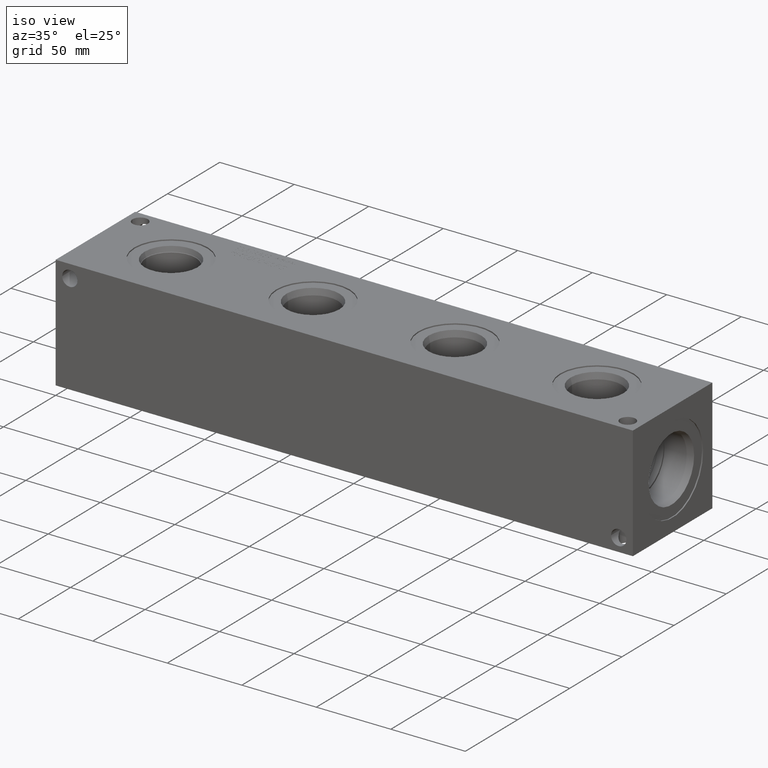
[diagram: clean part render]
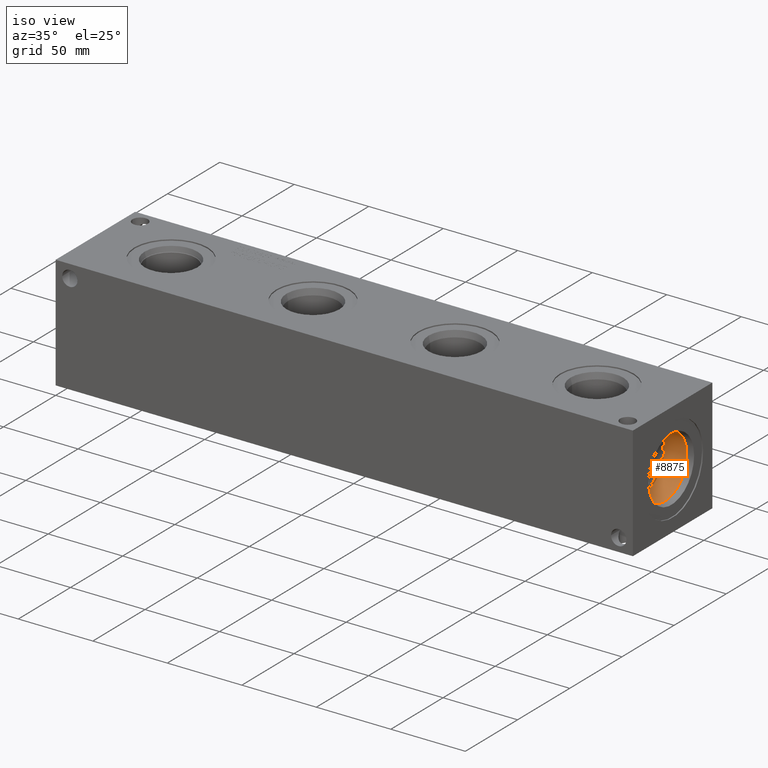
[diagram: same view with one face highlighted and labeled with its STEP entity id]
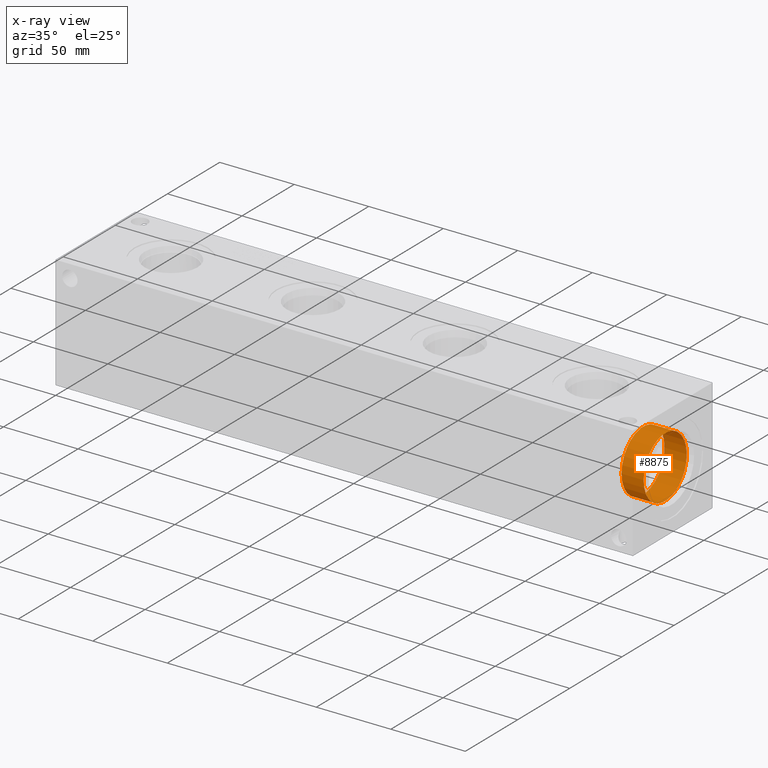
[diagram: x-ray of the same camera — body ghosted, the highlighted face saturated]
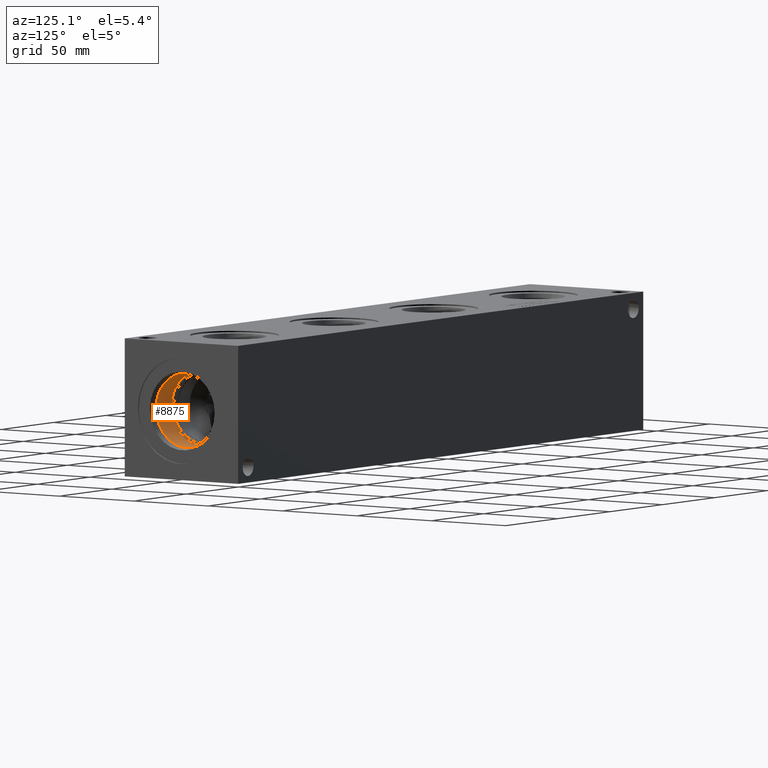
[diagram: same view with one face highlighted and labeled with its STEP entity id]
A machine part, iso view. The second image highlights one B-rep face of the part: STEP entity #8875.
The next image is the same camera in x-ray: the body ghosted, the highlighted face saturated — about 0% of this face is hidden behind the body in this view.
A second angle (auxiliary view) of the same face is appended — the face is thin or edge-on in the first view.
In plain terms, the highlighted cylindrical surface (bore or boss wall) has radius 20.6375 mm, axis along (1, 0, 0).
Its self-contained STEP definition (entity closure, byte-faithful):
#86=CYLINDRICAL_SURFACE('',#9457,20.6375);
#338=CIRCLE('',#9454,20.6375);
#339=CIRCLE('',#9455,20.6375);
#341=CIRCLE('',#9458,20.6375);
#1183=FACE_OUTER_BOUND('',#1690,.T.);
#1690=EDGE_LOOP('',(#7752,#7753,#7754,#7755,#7756));
#2497=LINE('',#15446,#3288);
#3288=VECTOR('',#11373,20.6375);
#4105=VERTEX_POINT('',#15437);
#4106=VERTEX_POINT('',#15438);
#4108=VERTEX_POINT('',#15444);
#5337=EDGE_CURVE('',#4105,#4106,#338,.T.);
#5338=EDGE_CURVE('',#4106,#4105,#339,.T.);
#5340=EDGE_CURVE('',#4108,#4108,#341,.T.);
#5341=EDGE_CURVE('',#4108,#4106,#2497,.T.);
#7752=ORIENTED_EDGE('',*,*,#5340,.F.);
#7753=ORIENTED_EDGE('',*,*,#5341,.T.);
#7754=ORIENTED_EDGE('',*,*,#5337,.F.);
#7755=ORIENTED_EDGE('',*,*,#5338,.F.);
#7756=ORIENTED_EDGE('',*,*,#5341,.F.);
#8875=ADVANCED_FACE('',(#1183),#86,.F.);
#9454=AXIS2_PLACEMENT_3D('',#15439,#11363,#11364);
#9455=AXIS2_PLACEMENT_3D('',#15440,#11365,#11366);
#9457=AXIS2_PLACEMENT_3D('',#15443,#11369,#11370);
#9458=AXIS2_PLACEMENT_3D('',#15445,#11371,#11372);
#11363=DIRECTION('center_axis',(1.,0.,0.));
#11364=DIRECTION('ref_axis',(0.,1.,0.));
#11365=DIRECTION('center_axis',(1.,0.,0.));
#11366=DIRECTION('ref_axis',(0.,1.,0.));
#11369=DIRECTION('center_axis',(1.,0.,0.));
#11370=DIRECTION('ref_axis',(0.,1.,0.));
#11371=DIRECTION('center_axis',(-1.,0.,0.));
#11372=DIRECTION('ref_axis',(0.,1.,0.));
#11373=DIRECTION('',(-1.,0.,0.));
#15437=CARTESIAN_POINT('',(367.5126,58.7375,38.1));
#15438=CARTESIAN_POINT('',(367.5126,17.4625,38.1));
#15439=CARTESIAN_POINT('Origin',(367.5126,38.1,38.1));
#15440=CARTESIAN_POINT('Origin',(367.5126,38.1,38.1));
#15443=CARTESIAN_POINT('Origin',(377.4313,38.1,38.1));
#15444=CARTESIAN_POINT('',(382.379000017461,17.4625,38.1));
#15445=CARTESIAN_POINT('Origin',(382.379000017461,38.1,38.1));
#15446=CARTESIAN_POINT('',(377.4313,17.4625,38.1));